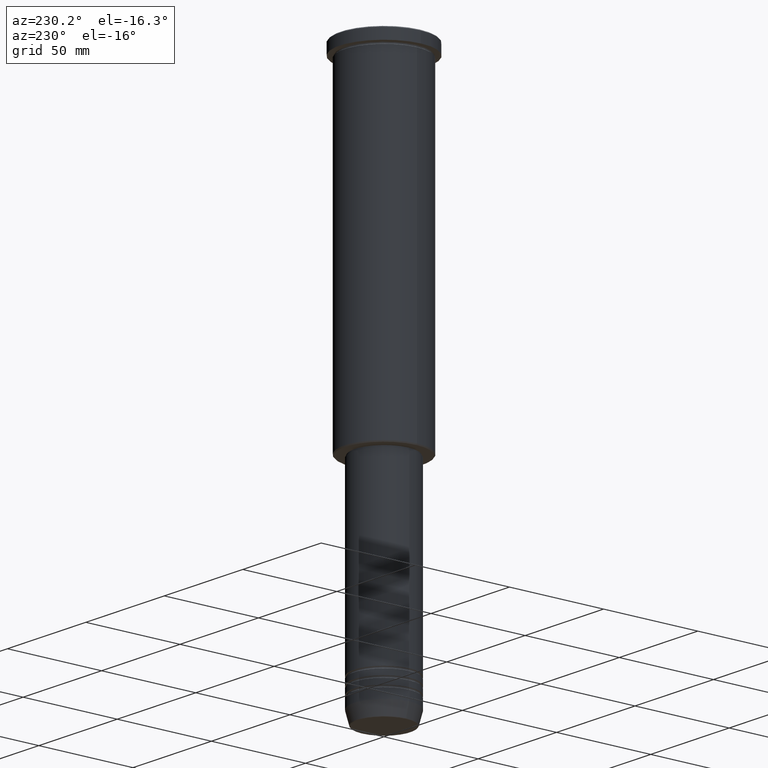
[diagram: clean part render]
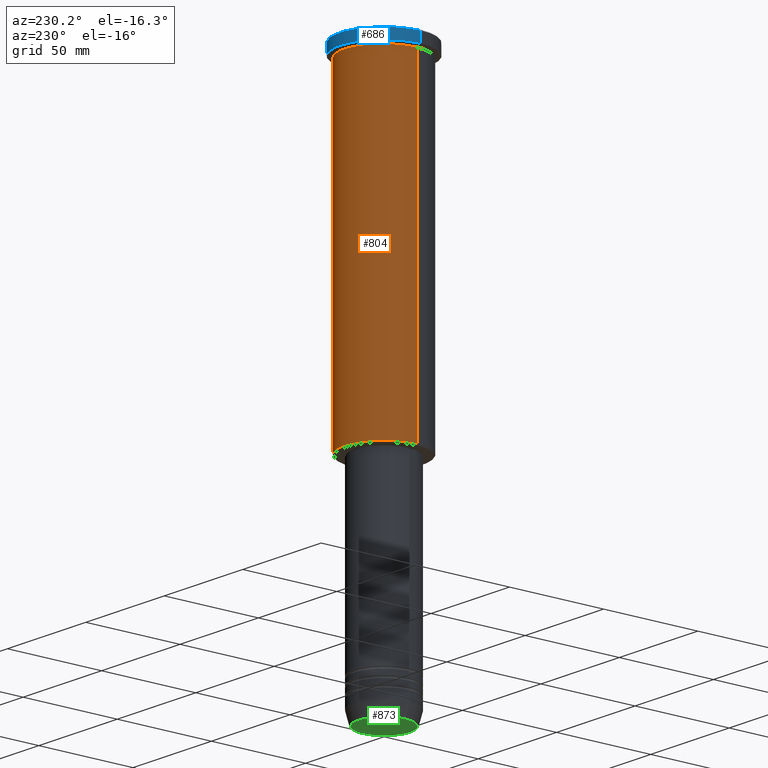
[diagram: same view with three faces highlighted in distinct colors, each labeled with its STEP entity id]
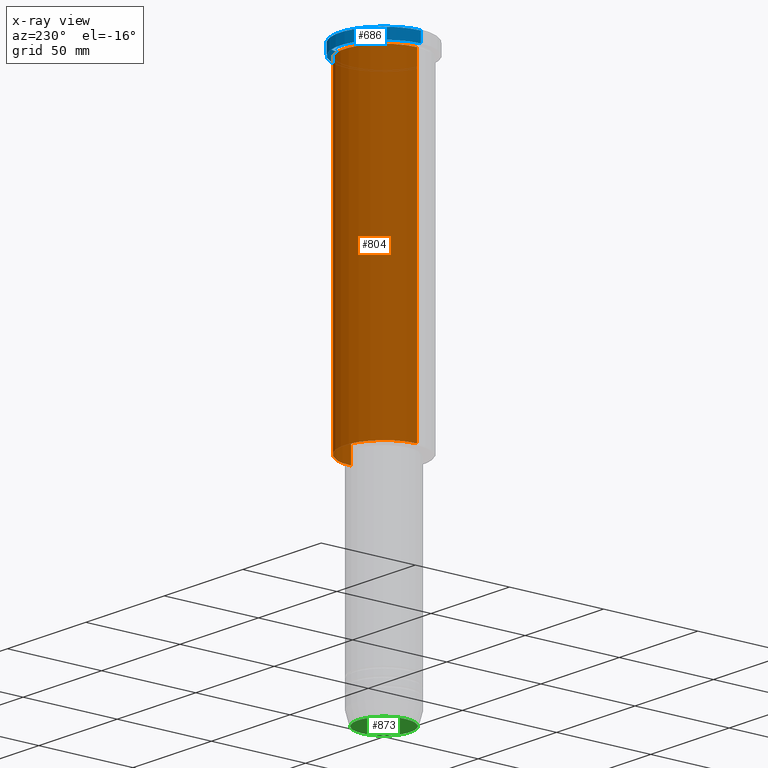
[diagram: x-ray of the same camera — body ghosted, the three highlighted faces saturated]
A machine part, auxiliary view with three faces highlighted in distinct colors.
The next image is the same camera in x-ray (body ghosted, the three faces saturated) — at least one of them is partly hidden behind the body in this view.
Their STEP definitions:

[orange] entity #804 — the highlighted cylindrical surface (partial cylindrical patch) has radius 21 mm, axis along (-0, -0, 1).
#54 = VERTEX_POINT ( 'NONE', #642 ) ;
#57 = DIRECTION ( 'NONE',  ( -0.000000000000000000, -0.000000000000000000, 1.000000000000000000 ) ) ;
#92 = FACE_OUTER_BOUND ( 'NONE', #466, .T. ) ;
#130 = CARTESIAN_POINT ( 'NONE',  ( 21.00000000000000000, 0.000000000000000000, -175.4999999999999147 ) ) ;
#139 = ORIENTED_EDGE ( 'NONE', *, *, #583, .F. ) ;
#176 = DIRECTION ( 'NONE',  ( -0.000000000000000000, -0.000000000000000000, 1.000000000000000000 ) ) ;
#182 = LINE ( 'NONE', #999, #990 ) ;
#190 = DIRECTION ( 'NONE',  ( 1.000000000000000000, 0.000000000000000000, 0.000000000000000000 ) ) ;
#247 = VERTEX_POINT ( 'NONE', #130 ) ;
#253 = AXIS2_PLACEMENT_3D ( 'NONE', #981, #57, #1080 ) ;
#261 = CARTESIAN_POINT ( 'NONE',  ( 0.000000000000000000, 0.000000000000000000, -175.4999999999999147 ) ) ;
#373 = VECTOR ( 'NONE', #748, 1000.000000000000000 ) ;
#418 = ORIENTED_EDGE ( 'NONE', *, *, #811, .F. ) ;
#451 = DIRECTION ( 'NONE',  ( -0.000000000000000000, -0.000000000000000000, 1.000000000000000000 ) ) ;
#466 = EDGE_LOOP ( 'NONE', ( #1010, #547, #139, #418 ) ) ;
#480 = AXIS2_PLACEMENT_3D ( 'NONE', #1175, #451, #190 ) ;
#547 = ORIENTED_EDGE ( 'NONE', *, *, #726, .T. ) ;
#583 = EDGE_CURVE ( 'NONE', #678, #1115, #594, .T. ) ;
#594 = CIRCLE ( 'NONE', #253, 21.00000000000000000 ) ;
#599 = AXIS2_PLACEMENT_3D ( 'NONE', #261, #619, #820 ) ;
#619 = DIRECTION ( 'NONE',  ( -0.000000000000000000, -0.000000000000000000, 1.000000000000000000 ) ) ;
#641 = CYLINDRICAL_SURFACE ( 'NONE', #480, 21.00000000000000000 ) ;
#642 = CARTESIAN_POINT ( 'NONE',  ( -21.00000000000000000, 2.571758278209441661E-15, -175.4999999999999147 ) ) ;
#675 = CIRCLE ( 'NONE', #599, 21.00000000000000000 ) ;
#678 = VERTEX_POINT ( 'NONE', #708 ) ;
#702 = CARTESIAN_POINT ( 'NONE',  ( -21.00000000000000000, 2.571758278209441661E-15, -6.999999999999993783 ) ) ;
#708 = CARTESIAN_POINT ( 'NONE',  ( 21.00000000000000000, 0.000000000000000000, -6.999999999999993783 ) ) ;
#726 = EDGE_CURVE ( 'NONE', #54, #1115, #182, .T. ) ;
#748 = DIRECTION ( 'NONE',  ( -0.000000000000000000, -0.000000000000000000, 1.000000000000000000 ) ) ;
#804 = ADVANCED_FACE ( 'NONE', ( #92 ), #641, .T. ) ;
#811 = EDGE_CURVE ( 'NONE', #247, #678, #919, .T. ) ;
#820 = DIRECTION ( 'NONE',  ( -1.000000000000000000, 0.000000000000000000, 0.000000000000000000 ) ) ;
#831 = CARTESIAN_POINT ( 'NONE',  ( 21.00000000000000000, 0.000000000000000000, 0.000000000000000000 ) ) ;
#919 = LINE ( 'NONE', #831, #373 ) ;
#981 = CARTESIAN_POINT ( 'NONE',  ( 0.000000000000000000, 0.000000000000000000, -6.999999999999993783 ) ) ;
#990 = VECTOR ( 'NONE', #176, 1000.000000000000000 ) ;
#999 = CARTESIAN_POINT ( 'NONE',  ( -21.00000000000000000, 2.571758278209441661E-15, 0.000000000000000000 ) ) ;
#1010 = ORIENTED_EDGE ( 'NONE', *, *, #1166, .T. ) ;
#1080 = DIRECTION ( 'NONE',  ( 1.000000000000000000, 0.000000000000000000, 0.000000000000000000 ) ) ;
#1115 = VERTEX_POINT ( 'NONE', #702 ) ;
#1166 = EDGE_CURVE ( 'NONE', #247, #54, #675, .T. ) ;
#1175 = CARTESIAN_POINT ( 'NONE',  ( 0.000000000000000000, 0.000000000000000000, 0.000000000000000000 ) ) ;

[blue] entity #686 — the highlighted cylindrical surface (partial cylindrical patch) has radius 23.5 mm, axis along (-0, -0, 1).
#36 = LINE ( 'NONE', #664, #404 ) ;
#63 = CIRCLE ( 'NONE', #125, 23.50000000000000000 ) ;
#69 = EDGE_CURVE ( 'NONE', #510, #1014, #858, .T. ) ;
#125 = AXIS2_PLACEMENT_3D ( 'NONE', #925, #652, #560 ) ;
#170 = ORIENTED_EDGE ( 'NONE', *, *, #844, .T. ) ;
#191 = EDGE_CURVE ( 'NONE', #1014, #784, #580, .T. ) ;
#208 = DIRECTION ( 'NONE',  ( -0.000000000000000000, -0.000000000000000000, 1.000000000000000000 ) ) ;
#267 = DIRECTION ( 'NONE',  ( 1.000000000000000000, 0.000000000000000000, 0.000000000000000000 ) ) ;
#363 = DIRECTION ( 'NONE',  ( -0.000000000000000000, -0.000000000000000000, 1.000000000000000000 ) ) ;
#404 = VECTOR ( 'NONE', #208, 1000.000000000000000 ) ;
#410 = CARTESIAN_POINT ( 'NONE',  ( -23.50000000000000000, 2.877919977996280320E-15, 0.000000000000000000 ) ) ;
#416 = CARTESIAN_POINT ( 'NONE',  ( 0.000000000000000000, 0.000000000000000000, 0.000000000000000000 ) ) ;
#425 = ORIENTED_EDGE ( 'NONE', *, *, #191, .T. ) ;
#461 = ORIENTED_EDGE ( 'NONE', *, *, #69, .T. ) ;
#468 = CARTESIAN_POINT ( 'NONE',  ( 0.000000000000000000, 0.000000000000000000, -5.999999999999993783 ) ) ;
#482 = AXIS2_PLACEMENT_3D ( 'NONE', #468, #363, #828 ) ;
#490 = DIRECTION ( 'NONE',  ( -0.000000000000000000, -0.000000000000000000, 1.000000000000000000 ) ) ;
#494 = CARTESIAN_POINT ( 'NONE',  ( 23.50000000000000000, 0.000000000000000000, -0.5000000000000559552 ) ) ;
#510 = VERTEX_POINT ( 'NONE', #554 ) ;
#554 = CARTESIAN_POINT ( 'NONE',  ( 23.50000000000000000, 0.000000000000000000, -5.999999999999993783 ) ) ;
#560 = DIRECTION ( 'NONE',  ( 1.000000000000000000, 0.000000000000000000, 0.000000000000000000 ) ) ;
#580 = LINE ( 'NONE', #410, #815 ) ;
#610 = EDGE_LOOP ( 'NONE', ( #461, #425, #170, #800 ) ) ;
#652 = DIRECTION ( 'NONE',  ( 0.000000000000000000, 0.000000000000000000, -1.000000000000000000 ) ) ;
#664 = CARTESIAN_POINT ( 'NONE',  ( 23.50000000000000000, 0.000000000000000000, 0.000000000000000000 ) ) ;
#685 = FACE_OUTER_BOUND ( 'NONE', #610, .T. ) ;
#686 = ADVANCED_FACE ( 'NONE', ( #685 ), #1052, .T. ) ;
#784 = VERTEX_POINT ( 'NONE', #1088 ) ;
#785 = DIRECTION ( 'NONE',  ( -0.000000000000000000, -0.000000000000000000, 1.000000000000000000 ) ) ;
#800 = ORIENTED_EDGE ( 'NONE', *, *, #950, .F. ) ;
#815 = VECTOR ( 'NONE', #490, 1000.000000000000000 ) ;
#828 = DIRECTION ( 'NONE',  ( 1.000000000000000000, 0.000000000000000000, 0.000000000000000000 ) ) ;
#844 = EDGE_CURVE ( 'NONE', #784, #1043, #63, .T. ) ;
#858 = CIRCLE ( 'NONE', #482, 23.50000000000000000 ) ;
#925 = CARTESIAN_POINT ( 'NONE',  ( 0.000000000000000000, 0.000000000000000000, -0.5000000000000559552 ) ) ;
#950 = EDGE_CURVE ( 'NONE', #510, #1043, #36, .T. ) ;
#1014 = VERTEX_POINT ( 'NONE', #1167 ) ;
#1043 = VERTEX_POINT ( 'NONE', #494 ) ;
#1052 = CYLINDRICAL_SURFACE ( 'NONE', #1136, 23.50000000000000000 ) ;
#1088 = CARTESIAN_POINT ( 'NONE',  ( -23.50000000000000000, 2.877919977996280320E-15, -0.5000000000000559552 ) ) ;
#1136 = AXIS2_PLACEMENT_3D ( 'NONE', #416, #785, #267 ) ;
#1167 = CARTESIAN_POINT ( 'NONE',  ( -23.50000000000000000, 2.877919977996280320E-15, -5.999999999999993783 ) ) ;

[green] entity #873 — the highlighted planar face has unit normal (0, -0, 1).
#8 = AXIS2_PLACEMENT_3D ( 'NONE', #316, #422, #982 ) ;
#14 = CIRCLE ( 'NONE', #8, 13.74069215899265828 ) ;
#29 = DIRECTION ( 'NONE',  ( 0.000000000000000000, 0.000000000000000000, -1.000000000000000000 ) ) ;
#128 = DIRECTION ( 'NONE',  ( 0.000000000000000000, -0.000000000000000000, 1.000000000000000000 ) ) ;
#145 = CARTESIAN_POINT ( 'NONE',  ( -13.74069215899265828, 1.712322416342415986E-15, -291.0000000000000000 ) ) ;
#211 = PLANE ( 'NONE',  #296 ) ;
#215 = CIRCLE ( 'NONE', #670, 13.74069215899265828 ) ;
#289 = CARTESIAN_POINT ( 'NONE',  ( 13.74069215899265828, 0.000000000000000000, -291.0000000000000000 ) ) ;
#291 = ORIENTED_EDGE ( 'NONE', *, *, #306, .T. ) ;
#296 = AXIS2_PLACEMENT_3D ( 'NONE', #679, #128, #488 ) ;
#306 = EDGE_CURVE ( 'NONE', #532, #640, #215, .T. ) ;
#316 = CARTESIAN_POINT ( 'NONE',  ( 0.000000000000000000, 0.000000000000000000, -291.0000000000000000 ) ) ;
#330 = EDGE_CURVE ( 'NONE', #640, #532, #14, .T. ) ;
#422 = DIRECTION ( 'NONE',  ( 0.000000000000000000, 0.000000000000000000, -1.000000000000000000 ) ) ;
#488 = DIRECTION ( 'NONE',  ( 1.000000000000000000, 0.000000000000000000, 0.000000000000000000 ) ) ;
#506 = ORIENTED_EDGE ( 'NONE', *, *, #330, .T. ) ;
#532 = VERTEX_POINT ( 'NONE', #289 ) ;
#640 = VERTEX_POINT ( 'NONE', #145 ) ;
#670 = AXIS2_PLACEMENT_3D ( 'NONE', #781, #29, #1042 ) ;
#679 = CARTESIAN_POINT ( 'NONE',  ( 0.000000000000000000, 0.000000000000000000, -291.0000000000000000 ) ) ;
#753 = FACE_OUTER_BOUND ( 'NONE', #782, .T. ) ;
#781 = CARTESIAN_POINT ( 'NONE',  ( 0.000000000000000000, 0.000000000000000000, -291.0000000000000000 ) ) ;
#782 = EDGE_LOOP ( 'NONE', ( #291, #506 ) ) ;
#873 = ADVANCED_FACE ( 'NONE', ( #753 ), #211, .F. ) ;
#982 = DIRECTION ( 'NONE',  ( 1.000000000000000000, 0.000000000000000000, 0.000000000000000000 ) ) ;
#1042 = DIRECTION ( 'NONE',  ( 1.000000000000000000, 0.000000000000000000, 0.000000000000000000 ) ) ;